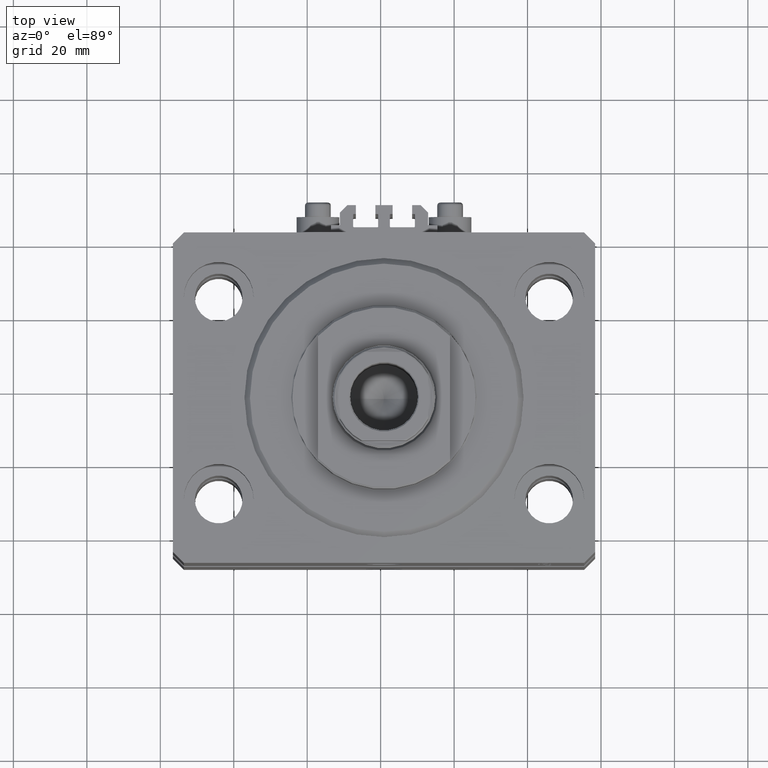
[diagram: clean part render]
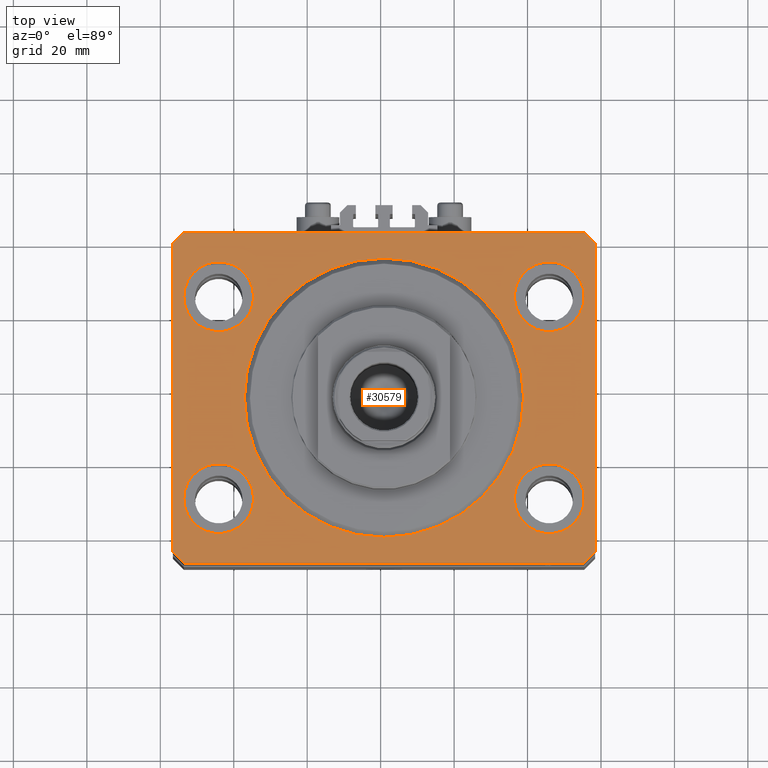
[diagram: same view with one face highlighted and labeled with its STEP entity id]
A machine part, top view. The second image highlights one B-rep face of the part: STEP entity #30579.
In plain terms, the highlighted planar face has unit normal (0, 0, 1).
Its self-contained STEP definition (entity closure, byte-faithful):
#877 = EDGE_CURVE ( 'NONE', #20199, #9448, #11698, .T. ) ;
#1380 = DIRECTION ( 'NONE',  ( 0.000000000000000000, 0.000000000000000000, 1.000000000000000000 ) ) ;
#1390 = EDGE_CURVE ( 'NONE', #6384, #42896, #33136, .T. ) ;
#2243 = CARTESIAN_POINT ( 'NONE',  ( 54.50000000000000000, 27.50000000000001776, 0.000000000000000000 ) ) ;
#2493 = EDGE_CURVE ( 'NONE', #15271, #45338, #22626, .T. ) ;
#3287 = EDGE_CURVE ( 'NONE', #5525, #6315, #42087, .T. ) ;
#3336 = CARTESIAN_POINT ( 'NONE',  ( 45.00000000000000000, 27.50000000000001776, 0.000000000000000000 ) ) ;
#3341 = DIRECTION ( 'NONE',  ( 1.000000000000000000, 0.000000000000000000, 0.000000000000000000 ) ) ;
#3458 = ORIENTED_EDGE ( 'NONE', *, *, #28088, .F. ) ;
#3556 = DIRECTION ( 'NONE',  ( 0.7071067811865491270, -0.7071067811865459074, 0.000000000000000000 ) ) ;
#3720 = ORIENTED_EDGE ( 'NONE', *, *, #9791, .F. ) ;
#4035 = CARTESIAN_POINT ( 'NONE',  ( -54.49999999999999289, 45.00000000000000000, 0.000000000000000000 ) ) ;
#4114 = CIRCLE ( 'NONE', #43829, 9.500000000000001776 ) ;
#4127 = FACE_OUTER_BOUND ( 'NONE', #17312, .T. ) ;
#4626 = AXIS2_PLACEMENT_3D ( 'NONE', #16546, #1380, #32214 ) ;
#4997 = DIRECTION ( 'NONE',  ( 0.000000000000000000, 0.000000000000000000, 1.000000000000000000 ) ) ;
#5106 = DIRECTION ( 'NONE',  ( 0.000000000000000000, 0.000000000000000000, 1.000000000000000000 ) ) ;
#5198 = CARTESIAN_POINT ( 'NONE',  ( -54.50000000000000000, -27.49999999999999645, 0.000000000000000000 ) ) ;
#5275 = CARTESIAN_POINT ( 'NONE',  ( -35.50000000000000000, -27.49999999999999645, 0.000000000000000000 ) ) ;
#5525 = VERTEX_POINT ( 'NONE', #34485 ) ;
#5734 = DIRECTION ( 'NONE',  ( 0.000000000000000000, 0.000000000000000000, 1.000000000000000000 ) ) ;
#6315 = VERTEX_POINT ( 'NONE', #36999 ) ;
#6384 = VERTEX_POINT ( 'NONE', #46652 ) ;
#6796 = ORIENTED_EDGE ( 'NONE', *, *, #27582, .T. ) ;
#7248 = VECTOR ( 'NONE', #3556, 1000.000000000000114 ) ;
#7838 = EDGE_LOOP ( 'NONE', ( #21453, #9659 ) ) ;
#8266 = CARTESIAN_POINT ( 'NONE',  ( -45.00000000000000000, -27.49999999999999645, 0.000000000000000000 ) ) ;
#8337 = EDGE_CURVE ( 'NONE', #20437, #8769, #22471, .T. ) ;
#8343 = EDGE_CURVE ( 'NONE', #27541, #20414, #34909, .T. ) ;
#8353 = CARTESIAN_POINT ( 'NONE',  ( 57.50000000000000711, -41.99999999999998579, 0.000000000000000000 ) ) ;
#8769 = VERTEX_POINT ( 'NONE', #2243 ) ;
#9195 = LINE ( 'NONE', #36774, #24980 ) ;
#9448 = VERTEX_POINT ( 'NONE', #16670 ) ;
#9659 = ORIENTED_EDGE ( 'NONE', *, *, #1390, .F. ) ;
#9791 = EDGE_CURVE ( 'NONE', #40688, #39416, #39251, .T. ) ;
#9930 = DIRECTION ( 'NONE',  ( 1.000000000000000000, 0.000000000000000000, 0.000000000000000000 ) ) ;
#10206 = CIRCLE ( 'NONE', #26899, 9.500000000000001776 ) ;
#10340 = EDGE_LOOP ( 'NONE', ( #11077, #3458 ) ) ;
#10712 = ORIENTED_EDGE ( 'NONE', *, *, #3287, .T. ) ;
#10744 = EDGE_LOOP ( 'NONE', ( #31448, #35323 ) ) ;
#11052 = DIRECTION ( 'NONE',  ( 0.000000000000000000, 0.000000000000000000, 1.000000000000000000 ) ) ;
#11077 = ORIENTED_EDGE ( 'NONE', *, *, #877, .F. ) ;
#11698 = CIRCLE ( 'NONE', #35533, 9.500000000000001776 ) ;
#12704 = DIRECTION ( 'NONE',  ( 1.000000000000000000, 0.000000000000000000, 0.000000000000000000 ) ) ;
#12768 = CARTESIAN_POINT ( 'NONE',  ( -45.00000000000000000, 27.50000000000000355, 0.000000000000000000 ) ) ;
#13195 = CARTESIAN_POINT ( 'NONE',  ( -45.00000000000000000, 27.50000000000000355, 0.000000000000000000 ) ) ;
#13391 = VECTOR ( 'NONE', #45856, 1000.000000000000000 ) ;
#14605 = VECTOR ( 'NONE', #34572, 1000.000000000000000 ) ;
#15271 = VERTEX_POINT ( 'NONE', #27089 ) ;
#15576 = CARTESIAN_POINT ( 'NONE',  ( 0.000000000000000000, 0.000000000000000000, 0.000000000000000000 ) ) ;
#15747 = DIRECTION ( 'NONE',  ( -0.7071067811865376918, 0.7071067811865574537, 0.000000000000000000 ) ) ;
#15755 = CARTESIAN_POINT ( 'NONE',  ( 57.50000000000055422, 41.99999999999997868, 0.000000000000000000 ) ) ;
#15912 = EDGE_CURVE ( 'NONE', #20414, #28631, #9195, .T. ) ;
#16033 = DIRECTION ( 'NONE',  ( 1.000000000000000000, 0.000000000000000000, -0.000000000000000000 ) ) ;
#16546 = CARTESIAN_POINT ( 'NONE',  ( 45.00000000000000000, 27.50000000000001776, 0.000000000000000000 ) ) ;
#16670 = CARTESIAN_POINT ( 'NONE',  ( 35.50000000000000000, -27.49999999999999645, 0.000000000000000000 ) ) ;
#16797 = CARTESIAN_POINT ( 'NONE',  ( 54.50000000000058975, 45.00000000000002842, 0.000000000000000000 ) ) ;
#17312 = EDGE_LOOP ( 'NONE', ( #31626, #6796, #43374, #10712, #47335, #44785, #29722, #31895 ) ) ;
#17583 = EDGE_CURVE ( 'NONE', #40454, #35876, #27438, .T. ) ;
#18428 = EDGE_CURVE ( 'NONE', #35876, #40454, #27464, .T. ) ;
#18843 = EDGE_CURVE ( 'NONE', #45338, #27541, #42428, .T. ) ;
#18899 = CARTESIAN_POINT ( 'NONE',  ( 54.50000000000000711, -44.99999999999998579, 0.000000000000000000 ) ) ;
#19062 = DIRECTION ( 'NONE',  ( 1.000000000000000000, 0.000000000000000000, 0.000000000000000000 ) ) ;
#19280 = FACE_BOUND ( 'NONE', #7838, .T. ) ;
#19399 = ORIENTED_EDGE ( 'NONE', *, *, #17583, .F. ) ;
#19490 = LINE ( 'NONE', #22973, #13391 ) ;
#20035 = DIRECTION ( 'NONE',  ( 6.443258625056715108E-15, 1.000000000000000000, 0.000000000000000000 ) ) ;
#20155 = DIRECTION ( 'NONE',  ( 1.000000000000000000, 0.000000000000000000, 0.000000000000000000 ) ) ;
#20199 = VERTEX_POINT ( 'NONE', #30082 ) ;
#20339 = AXIS2_PLACEMENT_3D ( 'NONE', #8266, #39362, #20440 ) ;
#20414 = VERTEX_POINT ( 'NONE', #16797 ) ;
#20437 = VERTEX_POINT ( 'NONE', #21032 ) ;
#20440 = DIRECTION ( 'NONE',  ( 1.000000000000000000, 0.000000000000000000, 0.000000000000000000 ) ) ;
#21032 = CARTESIAN_POINT ( 'NONE',  ( 35.50000000000000000, 27.50000000000001776, 0.000000000000000000 ) ) ;
#21238 = ORIENTED_EDGE ( 'NONE', *, *, #23391, .F. ) ;
#21453 = ORIENTED_EDGE ( 'NONE', *, *, #33891, .F. ) ;
#22471 = CIRCLE ( 'NONE', #28813, 9.500000000000001776 ) ;
#22626 = LINE ( 'NONE', #18899, #38993 ) ;
#22892 = CIRCLE ( 'NONE', #49105, 38.00000000000000000 ) ;
#22973 = CARTESIAN_POINT ( 'NONE',  ( -54.50000000000000711, -45.00000000000000000, 0.000000000000000000 ) ) ;
#23087 = DIRECTION ( 'NONE',  ( 1.000000000000000000, 0.000000000000000000, 0.000000000000000000 ) ) ;
#23197 = CARTESIAN_POINT ( 'NONE',  ( 57.50000000000055422, 41.99999999999997868, 0.000000000000000000 ) ) ;
#23206 = CARTESIAN_POINT ( 'NONE',  ( -54.49999999999999289, 45.00000000000000000, 0.000000000000000000 ) ) ;
#23247 = ORIENTED_EDGE ( 'NONE', *, *, #18428, .F. ) ;
#23391 = EDGE_CURVE ( 'NONE', #39416, #40688, #22892, .T. ) ;
#23832 = EDGE_CURVE ( 'NONE', #6315, #15271, #19490, .T. ) ;
#24134 = CARTESIAN_POINT ( 'NONE',  ( 57.50000000000000711, -41.99999999999998579, 0.000000000000000000 ) ) ;
#24283 = CARTESIAN_POINT ( 'NONE',  ( 38.00000000000000000, 0.000000000000000000, 0.000000000000000000 ) ) ;
#24980 = VECTOR ( 'NONE', #28076, 1000.000000000000000 ) ;
#25731 = AXIS2_PLACEMENT_3D ( 'NONE', #15576, #37986, #19062 ) ;
#25994 = EDGE_LOOP ( 'NONE', ( #3720, #21238 ) ) ;
#26052 = CIRCLE ( 'NONE', #4626, 9.500000000000001776 ) ;
#26600 = LINE ( 'NONE', #34313, #14605 ) ;
#26656 = CARTESIAN_POINT ( 'NONE',  ( -57.50000000000000711, -42.00000000000000711, 0.000000000000000000 ) ) ;
#26899 = AXIS2_PLACEMENT_3D ( 'NONE', #45483, #38278, #23087 ) ;
#27089 = CARTESIAN_POINT ( 'NONE',  ( 54.50000000000000711, -44.99999999999998579, 0.000000000000000000 ) ) ;
#27306 = EDGE_CURVE ( 'NONE', #8769, #20437, #26052, .T. ) ;
#27438 = CIRCLE ( 'NONE', #47277, 9.500000000000001776 ) ;
#27464 = CIRCLE ( 'NONE', #20339, 9.500000000000001776 ) ;
#27541 = VERTEX_POINT ( 'NONE', #15755 ) ;
#27582 = EDGE_CURVE ( 'NONE', #28631, #47052, #30426, .T. ) ;
#28076 = DIRECTION ( 'NONE',  ( -1.000000000000000000, -2.546383084002639322E-16, 0.000000000000000000 ) ) ;
#28088 = EDGE_CURVE ( 'NONE', #9448, #20199, #10206, .T. ) ;
#28631 = VERTEX_POINT ( 'NONE', #4035 ) ;
#28813 = AXIS2_PLACEMENT_3D ( 'NONE', #3336, #48840, #29926 ) ;
#29722 = ORIENTED_EDGE ( 'NONE', *, *, #18843, .T. ) ;
#29926 = DIRECTION ( 'NONE',  ( 1.000000000000000000, 0.000000000000000000, 0.000000000000000000 ) ) ;
#30082 = CARTESIAN_POINT ( 'NONE',  ( 54.50000000000000000, -27.49999999999999645, 0.000000000000000000 ) ) ;
#30426 = LINE ( 'NONE', #23206, #43599 ) ;
#30579 = ADVANCED_FACE ( 'NONE', ( #34462, #38188, #34720, #19280, #30967, #4127 ), #31209, .T. ) ;
#30967 = FACE_BOUND ( 'NONE', #25994, .T. ) ;
#31106 = CARTESIAN_POINT ( 'NONE',  ( 0.000000000000000000, 0.000000000000000000, 0.000000000000000000 ) ) ;
#31209 = PLANE ( 'NONE',  #35105 ) ;
#31448 = ORIENTED_EDGE ( 'NONE', *, *, #27306, .F. ) ;
#31626 = ORIENTED_EDGE ( 'NONE', *, *, #15912, .T. ) ;
#31895 = ORIENTED_EDGE ( 'NONE', *, *, #8343, .T. ) ;
#32214 = DIRECTION ( 'NONE',  ( 1.000000000000000000, 0.000000000000000000, 0.000000000000000000 ) ) ;
#33136 = CIRCLE ( 'NONE', #43486, 9.500000000000001776 ) ;
#33555 = CARTESIAN_POINT ( 'NONE',  ( 45.00000000000000000, -27.49999999999999645, 0.000000000000000000 ) ) ;
#33891 = EDGE_CURVE ( 'NONE', #42896, #6384, #4114, .T. ) ;
#34075 = DIRECTION ( 'NONE',  ( 0.7071067811865483499, 0.7071067811865466846, 0.000000000000000000 ) ) ;
#34313 = CARTESIAN_POINT ( 'NONE',  ( -57.49999999999998579, 42.00000000000000711, 0.000000000000000000 ) ) ;
#34462 = FACE_BOUND ( 'NONE', #40695, .T. ) ;
#34485 = CARTESIAN_POINT ( 'NONE',  ( -57.50000000000000711, -42.00000000000000711, 0.000000000000000000 ) ) ;
#34572 = DIRECTION ( 'NONE',  ( -2.478176394252581141E-16, -1.000000000000000000, 0.000000000000000000 ) ) ;
#34720 = FACE_BOUND ( 'NONE', #10744, .T. ) ;
#34909 = LINE ( 'NONE', #23197, #42329 ) ;
#35105 = AXIS2_PLACEMENT_3D ( 'NONE', #46861, #5106, #16033 ) ;
#35323 = ORIENTED_EDGE ( 'NONE', *, *, #8337, .F. ) ;
#35533 = AXIS2_PLACEMENT_3D ( 'NONE', #33555, #44011, #9930 ) ;
#35876 = VERTEX_POINT ( 'NONE', #5198 ) ;
#36774 = CARTESIAN_POINT ( 'NONE',  ( 54.50000000000058975, 45.00000000000002842, 0.000000000000000000 ) ) ;
#36999 = CARTESIAN_POINT ( 'NONE',  ( -54.50000000000000711, -45.00000000000000000, 0.000000000000000000 ) ) ;
#37986 = DIRECTION ( 'NONE',  ( 0.000000000000000000, 0.000000000000000000, 1.000000000000000000 ) ) ;
#38188 = FACE_BOUND ( 'NONE', #10340, .T. ) ;
#38278 = DIRECTION ( 'NONE',  ( 0.000000000000000000, 0.000000000000000000, 1.000000000000000000 ) ) ;
#38993 = VECTOR ( 'NONE', #34075, 1000.000000000000000 ) ;
#39140 = CARTESIAN_POINT ( 'NONE',  ( -35.50000000000000000, 27.50000000000000355, 0.000000000000000000 ) ) ;
#39251 = CIRCLE ( 'NONE', #25731, 38.00000000000000000 ) ;
#39348 = EDGE_CURVE ( 'NONE', #47052, #5525, #26600, .T. ) ;
#39362 = DIRECTION ( 'NONE',  ( 0.000000000000000000, 0.000000000000000000, 1.000000000000000000 ) ) ;
#39390 = DIRECTION ( 'NONE',  ( 1.000000000000000000, 0.000000000000000000, 0.000000000000000000 ) ) ;
#39416 = VERTEX_POINT ( 'NONE', #46966 ) ;
#40454 = VERTEX_POINT ( 'NONE', #5275 ) ;
#40688 = VERTEX_POINT ( 'NONE', #24283 ) ;
#40695 = EDGE_LOOP ( 'NONE', ( #19399, #23247 ) ) ;
#41014 = VECTOR ( 'NONE', #20035, 1000.000000000000000 ) ;
#42087 = LINE ( 'NONE', #26656, #7248 ) ;
#42329 = VECTOR ( 'NONE', #15747, 999.9999999999998863 ) ;
#42428 = LINE ( 'NONE', #8353, #41014 ) ;
#42621 = DIRECTION ( 'NONE',  ( -0.7071067811865483499, -0.7071067811865466846, 0.000000000000000000 ) ) ;
#42896 = VERTEX_POINT ( 'NONE', #39140 ) ;
#43374 = ORIENTED_EDGE ( 'NONE', *, *, #39348, .T. ) ;
#43486 = AXIS2_PLACEMENT_3D ( 'NONE', #12768, #43841, #39390 ) ;
#43599 = VECTOR ( 'NONE', #42621, 1000.000000000000000 ) ;
#43829 = AXIS2_PLACEMENT_3D ( 'NONE', #13195, #5734, #12704 ) ;
#43841 = DIRECTION ( 'NONE',  ( 0.000000000000000000, 0.000000000000000000, 1.000000000000000000 ) ) ;
#44011 = DIRECTION ( 'NONE',  ( 0.000000000000000000, 0.000000000000000000, 1.000000000000000000 ) ) ;
#44473 = CARTESIAN_POINT ( 'NONE',  ( -57.49999999999998579, 42.00000000000000711, 0.000000000000000000 ) ) ;
#44785 = ORIENTED_EDGE ( 'NONE', *, *, #2493, .T. ) ;
#45120 = CARTESIAN_POINT ( 'NONE',  ( -45.00000000000000000, -27.49999999999999645, 0.000000000000000000 ) ) ;
#45338 = VERTEX_POINT ( 'NONE', #24134 ) ;
#45483 = CARTESIAN_POINT ( 'NONE',  ( 45.00000000000000000, -27.49999999999999645, 0.000000000000000000 ) ) ;
#45856 = DIRECTION ( 'NONE',  ( 1.000000000000000000, 1.273191542001326317E-16, 0.000000000000000000 ) ) ;
#46652 = CARTESIAN_POINT ( 'NONE',  ( -54.50000000000000000, 27.50000000000000355, 0.000000000000000000 ) ) ;
#46861 = CARTESIAN_POINT ( 'NONE',  ( 0.000000000000000000, 0.000000000000000000, 0.000000000000000000 ) ) ;
#46966 = CARTESIAN_POINT ( 'NONE',  ( -38.00000000000000000, 4.653657836759941941E-15, 0.000000000000000000 ) ) ;
#47052 = VERTEX_POINT ( 'NONE', #44473 ) ;
#47277 = AXIS2_PLACEMENT_3D ( 'NONE', #45120, #11052, #3341 ) ;
#47335 = ORIENTED_EDGE ( 'NONE', *, *, #23832, .T. ) ;
#48840 = DIRECTION ( 'NONE',  ( 0.000000000000000000, 0.000000000000000000, 1.000000000000000000 ) ) ;
#49105 = AXIS2_PLACEMENT_3D ( 'NONE', #31106, #4997, #20155 ) ;